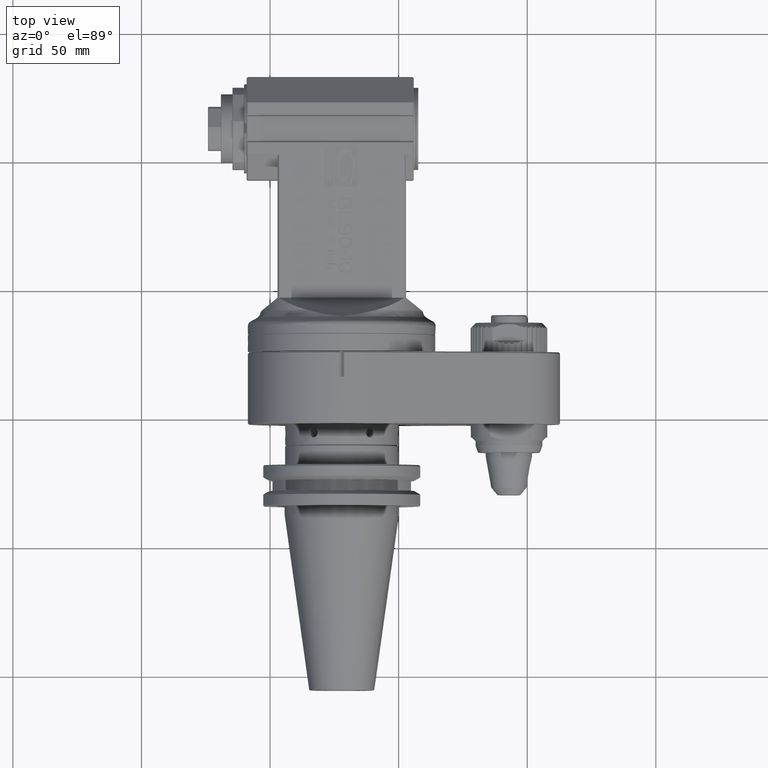
[diagram: clean part render]
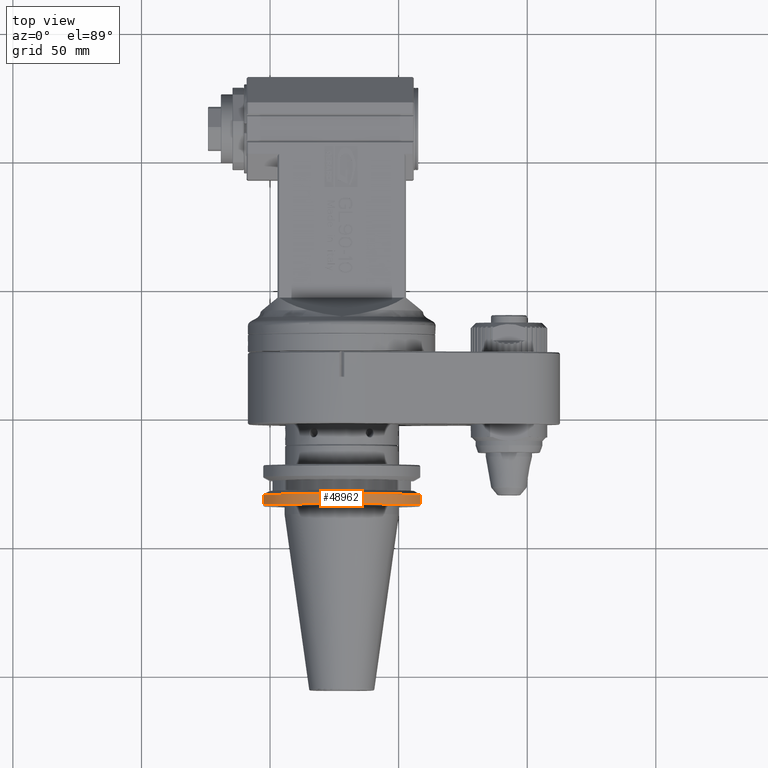
[diagram: same view with one face highlighted and labeled with its STEP entity id]
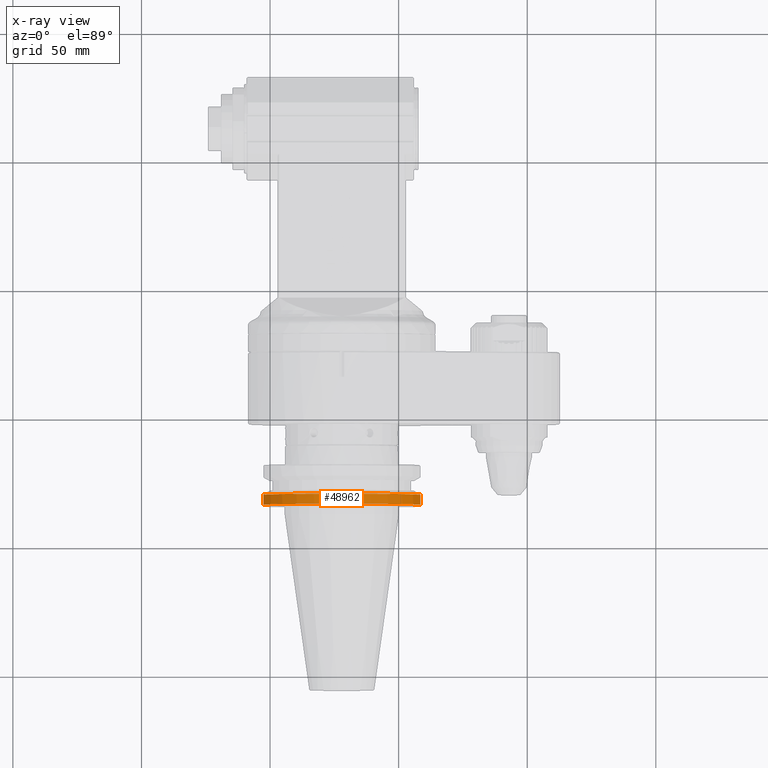
[diagram: x-ray of the same camera — body ghosted, the highlighted face saturated]
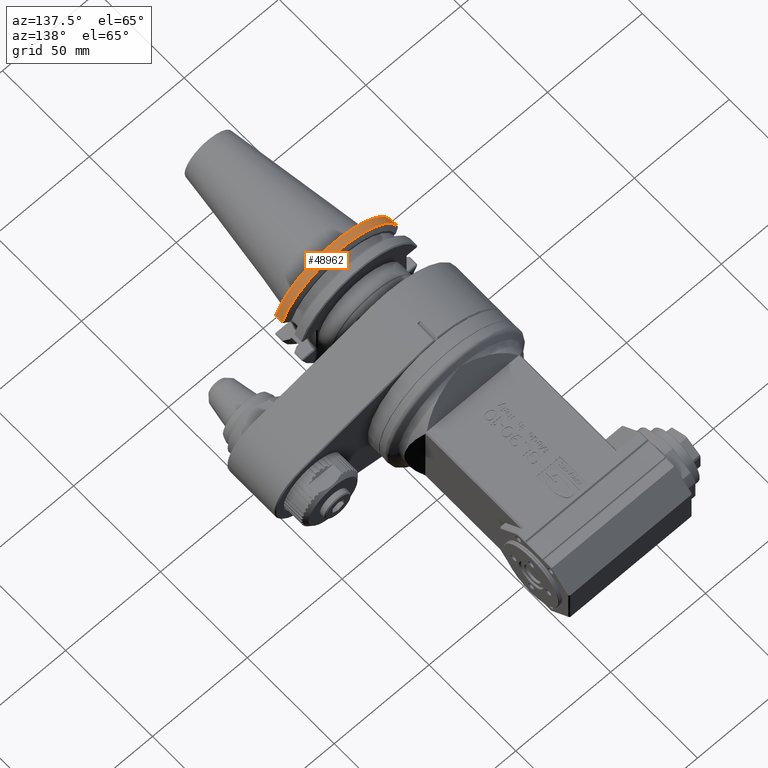
[diagram: same view with one face highlighted and labeled with its STEP entity id]
A machine part, top view. The second image highlights one B-rep face of the part: STEP entity #48962.
The next image is the same camera in x-ray: the body ghosted, the highlighted face saturated — about 0% of this face is hidden behind the body in this view.
A second angle (auxiliary view) of the same face is appended — the face is thin or edge-on in the first view.
In plain terms, the highlighted cylindrical surface (partial cylindrical patch) has radius 31.725 mm, axis along (0, -1, 0).
Its self-contained STEP definition (entity closure, byte-faithful):
#3120=B_SPLINE_CURVE_WITH_KNOTS('',3,(#79406,#79407,#79408,#79409,#79410,
#79411,#79412,#79413,#79414,#79415,#79416,#79417,#79418,#79419,#79420,#79421,
#79422,#79423,#79424,#79425,#79426,#79427,#79428,#79429,#79430,#79431,#79432,
#79433,#79434,#79435),.UNSPECIFIED.,.F.,.F.,(4,2,2,2,2,2,2,2,2,2,2,2,2,
2,4),(0.850093825316288,1.19503854793784,1.79255782190677,2.39007709587569,
2.98759636985178,3.58511564382788,4.18263491780397,4.78015419178007,5.37767346575892,
5.97519273973778,6.57271201371664,7.1702312876955,7.76775056166719,8.36526983563887,
8.71021455841907),.UNSPECIFIED.);
#5254=FACE_OUTER_BOUND('',#8155,.T.);
#8155=EDGE_LOOP('',(#42640,#42641,#42642,#42643));
#13173=LINE('',#79437,#18255);
#13174=LINE('',#79440,#18256);
#18255=VECTOR('',#63314,10.);
#18256=VECTOR('',#63317,10.);
#20047=CIRCLE('',#52480,31.725);
#24203=VERTEX_POINT('',#79404);
#24204=VERTEX_POINT('',#79405);
#24205=VERTEX_POINT('',#79436);
#24206=VERTEX_POINT('',#79438);
#30570=EDGE_CURVE('',#24203,#24204,#3120,.T.);
#30571=EDGE_CURVE('',#24204,#24205,#13173,.T.);
#30572=EDGE_CURVE('',#24205,#24206,#20047,.T.);
#30573=EDGE_CURVE('',#24206,#24203,#13174,.T.);
#42640=ORIENTED_EDGE('',*,*,#30570,.T.);
#42641=ORIENTED_EDGE('',*,*,#30571,.T.);
#42642=ORIENTED_EDGE('',*,*,#30572,.T.);
#42643=ORIENTED_EDGE('',*,*,#30573,.T.);
#46849=CYLINDRICAL_SURFACE('',#52479,31.725);
#48962=ADVANCED_FACE('',(#5254),#46849,.T.);
#52479=AXIS2_PLACEMENT_3D('',#79403,#63312,#63313);
#52480=AXIS2_PLACEMENT_3D('',#79439,#63315,#63316);
#63312=DIRECTION('center_axis',(0.,-1.,0.));
#63313=DIRECTION('ref_axis',(-1.,0.,0.));
#63314=DIRECTION('',(0.,1.,0.));
#63315=DIRECTION('center_axis',(0.,-1.,0.));
#63316=DIRECTION('ref_axis',(0.961781225115764,0.,0.27381905524419));
#63317=DIRECTION('',(0.,-1.,0.));
#79403=CARTESIAN_POINT('Origin',(1.167303275979E-14,-18.625,0.));
#79404=CARTESIAN_POINT('',(-30.5125093670177,-38.4000564243482,8.68690952848466));
#79405=CARTESIAN_POINT('',(30.512509366551,-38.3997554383698,8.6869095266479));
#79406=CARTESIAN_POINT('Ctrl Pts',(-30.5125093665869,-38.400056425369,8.68690952836202));
#79407=CARTESIAN_POINT('Ctrl Pts',(-30.1794488073218,-38.4000566693564,
9.85677476075974));
#79408=CARTESIAN_POINT('Ctrl Pts',(-29.7773480568721,-38.4000565500857,
11.0125425909984));
#79409=CARTESIAN_POINT('Ctrl Pts',(-28.5006651068399,-38.4000552240339,
14.0947278838246));
#79410=CARTESIAN_POINT('Ctrl Pts',(-27.4926329030667,-38.4000532739422,
15.9683762952137));
#79411=CARTESIAN_POINT('Ctrl Pts',(-25.1630374542808,-38.4000473720456,
19.4333592444227));
#79412=CARTESIAN_POINT('Ctrl Pts',(-23.8413290682278,-38.4000434193675,
21.0245961980526));
#79413=CARTESIAN_POINT('Ctrl Pts',(-21.0245961981374,-38.4000340693239,
23.841329068155));
#79414=CARTESIAN_POINT('Ctrl Pts',(-19.433359244496,-38.4000283525846,25.1630374542255));
#79415=CARTESIAN_POINT('Ctrl Pts',(-15.9683762952654,-38.4000150195915,
27.4926329030379));
#79416=CARTESIAN_POINT('Ctrl Pts',(-14.0947278838662,-38.4000074040531,
28.5006651068202));
#79417=CARTESIAN_POINT('Ctrl Pts',(-10.1865358997099,-38.3999907387605,
30.1194912310164));
#79418=CARTESIAN_POINT('Ctrl Pts',(-8.1488799955058,-38.3999816757348,30.7315743213263));
#79419=CARTESIAN_POINT('Ctrl Pts',(-4.05149431615127,-38.3999627613203,
31.5344145221463));
#79420=CARTESIAN_POINT('Ctrl Pts',(-1.99173091322941,-38.3999529094888,
31.725));
#79421=CARTESIAN_POINT('Ctrl Pts',(1.99173091323864,-38.3999332621994,31.725));
#79422=CARTESIAN_POINT('Ctrl Pts',(4.05149431616663,-38.3999227956397,31.5344145221446));
#79423=CARTESIAN_POINT('Ctrl Pts',(8.14887999552798,-38.3999012916852,30.7315743213207));
#79424=CARTESIAN_POINT('Ctrl Pts',(10.1865358997328,-38.3998902544014,30.1194912310086));
#79425=CARTESIAN_POINT('Ctrl Pts',(14.0947278838868,-38.3998683676237,28.5006651068099));
#79426=CARTESIAN_POINT('Ctrl Pts',(15.9683762952829,-38.3998575007001,27.4926329030275));
#79427=CARTESIAN_POINT('Ctrl Pts',(19.4333592445055,-38.3998366536429,25.1630374542179));
#79428=CARTESIAN_POINT('Ctrl Pts',(21.0245961981421,-38.3998266737564,23.8413290681503));
#79429=CARTESIAN_POINT('Ctrl Pts',(23.8413290682231,-38.3998082383816,21.0245961980573));
#79430=CARTESIAN_POINT('Ctrl Pts',(25.1630374542731,-38.3997991531875,19.4333592444322));
#79431=CARTESIAN_POINT('Ctrl Pts',(27.4926329030563,-38.3997820750159,15.9683762952312));
#79432=CARTESIAN_POINT('Ctrl Pts',(28.5006651068297,-38.3997740814798,14.0947278838452));
#79433=CARTESIAN_POINT('Ctrl Pts',(29.7773480570765,-38.3997628138403,11.0125425905072));
#79434=CARTESIAN_POINT('Ctrl Pts',(30.1794488076805,-38.3997589666382,9.85677475972969));
#79435=CARTESIAN_POINT('Ctrl Pts',(30.5125093670356,-38.3997554372201,8.68690952678588));
#79436=CARTESIAN_POINT('',(30.5125093668,-34.5,8.686909527622));
#79437=CARTESIAN_POINT('',(30.512509366798,-18.625,8.68690952762074));
#79438=CARTESIAN_POINT('',(-30.5125093668,-34.5,8.686909527622));
#79439=CARTESIAN_POINT('Origin',(4.2403852604E-16,-34.5,0.));
#79440=CARTESIAN_POINT('',(-30.5125093667979,-18.625,8.68690952762071));